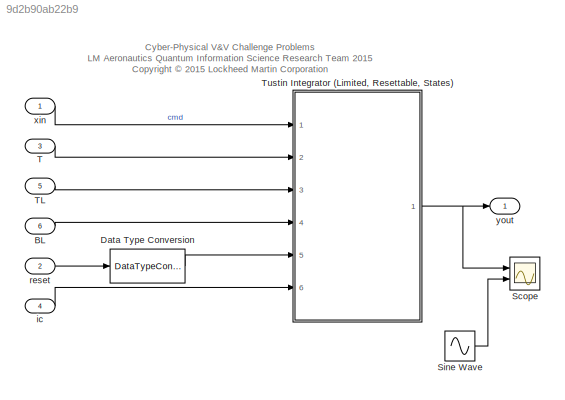
MODEL slx_9d2b90ab22b9
KIND model
CONFIG AbsTol = auto
CONFIG FixedStep = 0.1
CONFIG MaxStep = auto
CONFIG MinStep = auto
CONFIG RelTol = 1e-3
CONFIG SampleTimeConstraint = Unconstrained
CONFIG Solver = FixedStepDiscrete
CONFIG SolverMode = Auto
CONFIG SolverName = FixedStepDiscrete
CONFIG StartTime = 0.0
CONFIG StopTime = 10.0
WORKSPACE source: MAT-file member
WORKSPACE BL = 8.23150537429
BLOCK [Inport] BL
  IconDisplay = Port number
  OutDataTypeStr = double
  Port = 6
BLOCK [DataTypeConversion] Data Type Conversion
  OutDataTypeStr = boolean
  RndMeth = Floor
  SaturateOnIntegerOverflow = off
BLOCK [Scope] Scope
  NumInputPorts = 2
  Ports = [2]
  ScopeSpecificationString = Simulink.scopes.TimeScopeBlockCfg('CurrentConfiguration', extmgr.ConfigurationSet(extmgr.Configuration('Core','General UI',true,'FigureColor',[1 1 1]),extmgr.Configuration('Core','Source UI',true),extmgr.Configuration('Sources','WiredSimulink',true),extmgr.Configuration('Visuals','Time Domain',true,'PlotType','Line','SerializedDisplays',{struct('MinYLimReal','-2.4035','MaxYLimReal','11.63228','YLa...<+1685ch>
BLOCK [Sin] Sine Wave
  Ports = [0, 1]
  SampleTime = 0
BLOCK [Inport] T
  IconDisplay = Port number
  OutDataTypeStr = double
  Port = 3
BLOCK [Inport] TL
  IconDisplay = Port number
  OutDataTypeStr = double
  Port = 5
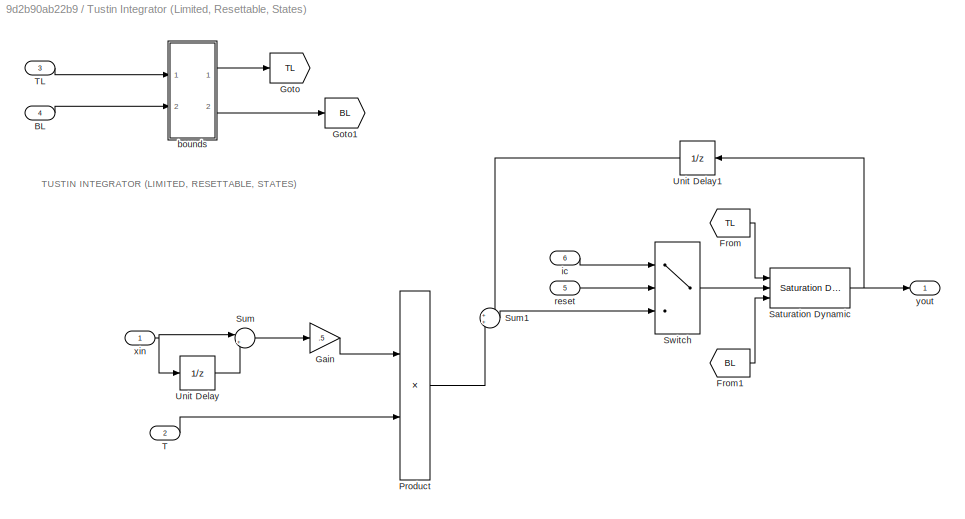
BLOCK [SubSystem] Tustin Integrator (Limited, Resettable, States)
  Ports = [6, 1]
  RequestExecContextInheritance = off
  Variant = off
BLOCK [Inport] Tustin Integrator (Limited, Resettable, States)/BL
  IconDisplay = Port number
  Port = 4
BLOCK [From] Tustin Integrator (Limited, Resettable, States)/From
  GotoTag = TL
BLOCK [From] Tustin Integrator (Limited, Resettable, States)/From1
  GotoTag = BL
BLOCK [Gain] Tustin Integrator (Limited, Resettable, States)/Gain
  Gain = .5
  OutDataTypeStr = Inherit: Inherit via internal rule
  ParamDataTypeStr = Inherit: Inherit via internal rule
  SaturateOnIntegerOverflow = off
BLOCK [Goto] Tustin Integrator (Limited, Resettable, States)/Goto
  GotoTag = TL
BLOCK [Goto] Tustin Integrator (Limited, Resettable, States)/Goto1
  GotoTag = BL
BLOCK [Product] Tustin Integrator (Limited, Resettable, States)/Product
  InputSameDT = off
  OutDataTypeStr = Inherit: Inherit via internal rule
  Ports = [2, 1]
  SaturateOnIntegerOverflow = off
BLOCK [Reference] Tustin Integrator (Limited, Resettable, States)/Saturation Dynamic  REF=simulink/Discontinuities/Saturation
Dynamic
  Ports = [3, 1]
  SourceBlock = simulink/Discontinuities/Saturation\nDynamic
  SourceType = Saturation Dynamic
BLOCK [Sum] Tustin Integrator (Limited, Resettable, States)/Sum
  IconShape = round
  InputSameDT = off
  Inputs = |++
  OutDataTypeStr = Inherit: Inherit via internal rule
  Ports = [2, 1]
  SaturateOnIntegerOverflow = off
BLOCK [Sum] Tustin Integrator (Limited, Resettable, States)/Sum1
  IconShape = round
  InputSameDT = off
  OutDataTypeStr = Inherit: Inherit via internal rule
  Ports = [2, 1]
  SaturateOnIntegerOverflow = off
BLOCK [Switch] Tustin Integrator (Limited, Resettable, States)/Switch
  Criteria = u2 ~= 0
  InputSameDT = off
  SaturateOnIntegerOverflow = off
  Threshold = 0.5
BLOCK [Inport] Tustin Integrator (Limited, Resettable, States)/T
  IconDisplay = Port number
  Port = 2
BLOCK [Inport] Tustin Integrator (Limited, Resettable, States)/TL
  IconDisplay = Port number
  Port = 3
BLOCK [UnitDelay] Tustin Integrator (Limited, Resettable, States)/Unit Delay
  InputProcessing = Elements as channels (sample based)
  SampleTime = -1
BLOCK [UnitDelay] Tustin Integrator (Limited, Resettable, States)/Unit Delay1
  InputProcessing = Elements as channels (sample based)
  SampleTime = -1
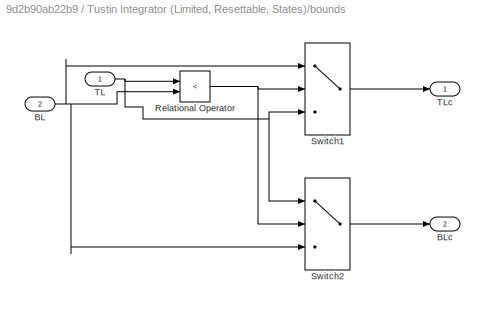
BLOCK [SubSystem] Tustin Integrator (Limited, Resettable, States)/bounds
  Ports = [2, 2]
  RequestExecContextInheritance = off
  Variant = off
BLOCK [Inport] Tustin Integrator (Limited, Resettable, States)/bounds/BL
  IconDisplay = Port number
  Port = 2
BLOCK [Outport] Tustin Integrator (Limited, Resettable, States)/bounds/BLc
  IconDisplay = Port number
  Port = 2
BLOCK [RelationalOperator] Tustin Integrator (Limited, Resettable, States)/bounds/Relational Operator
  InputSameDT = off
  Operator = <
  OutDataTypeStr = boolean
  Ports = [2, 1]
BLOCK [Switch] Tustin Integrator (Limited, Resettable, States)/bounds/Switch1
  Criteria = u2 ~= 0
  InputSameDT = off
  SaturateOnIntegerOverflow = off
  Threshold = 0.5
BLOCK [Switch] Tustin Integrator (Limited, Resettable, States)/bounds/Switch2
  Criteria = u2 ~= 0
  InputSameDT = off
  SaturateOnIntegerOverflow = off
  Threshold = 0.5
BLOCK [Inport] Tustin Integrator (Limited, Resettable, States)/bounds/TL
  IconDisplay = Port number
BLOCK [Outport] Tustin Integrator (Limited, Resettable, States)/bounds/TLc
  IconDisplay = Port number
BLOCK [Inport] Tustin Integrator (Limited, Resettable, States)/ic
  IconDisplay = Port number
  Port = 6
BLOCK [Inport] Tustin Integrator (Limited, Resettable, States)/reset
  IconDisplay = Port number
  Port = 5
BLOCK [Inport] Tustin Integrator (Limited, Resettable, States)/xin
  IconDisplay = Port number
BLOCK [Outport] Tustin Integrator (Limited, Resettable, States)/yout
  IconDisplay = Port number
BLOCK [Inport] ic
  IconDisplay = Port number
  OutDataTypeStr = double
  Port = 4
BLOCK [Inport] reset
  IconDisplay = Port number
  OutDataTypeStr = double
  Port = 2
BLOCK [Inport] xin
  IconDisplay = Port number
  OutDataTypeStr = double
  PortDimensions = 1
BLOCK [Outport] yout
  IconDisplay = Port number
ANNOTATION (root): Cyber-Physical V&V Challenge Problems LM Aeronautics Quantum Information Science Research Team 2015 <copyright redacted>
ANNOTATION Tustin Integrator (Limited, Resettable, States): TUSTIN INTEGRATOR (LIMITED, RESETTABLE, STATES)
LINE BL:1 -> Tustin Integrator (Limited, Resettable, States):4
LINE Data Type Conversion:1 -> Tustin Integrator (Limited, Resettable, States):5
LINE Sine Wave:1 -> Scope:2
LINE T:1 -> Tustin Integrator (Limited, Resettable, States):2
LINE TL:1 -> Tustin Integrator (Limited, Resettable, States):3
LINE Tustin Integrator (Limited, Resettable, States)/BL:1 -> Tustin Integrator (Limited, Resettable, States)/bounds:2
LINE Tustin Integrator (Limited, Resettable, States)/From1:1 -> Tustin Integrator (Limited, Resettable, States)/Saturation Dynamic:3
LINE Tustin Integrator (Limited, Resettable, States)/From:1 -> Tustin Integrator (Limited, Resettable, States)/Saturation Dynamic:1
LINE Tustin Integrator (Limited, Resettable, States)/Gain:1 -> Tustin Integrator (Limited, Resettable, States)/Product:1
LINE Tustin Integrator (Limited, Resettable, States)/Product:1 -> Tustin Integrator (Limited, Resettable, States)/Sum1:2
NET Tustin Integrator (Limited, Resettable, States)/Saturation Dynamic:1 -> Tustin Integrator (Limited, Resettable, States)/Unit Delay1:1, Tustin Integrator (Limited, Resettable, States)/yout:1
LINE Tustin Integrator (Limited, Resettable, States)/Sum1:1 -> Tustin Integrator (Limited, Resettable, States)/Switch:3
LINE Tustin Integrator (Limited, Resettable, States)/Sum:1 -> Tustin Integrator (Limited, Resettable, States)/Gain:1
LINE Tustin Integrator (Limited, Resettable, States)/Switch:1 -> Tustin Integrator (Limited, Resettable, States)/Saturation Dynamic:2
LINE Tustin Integrator (Limited, Resettable, States)/T:1 -> Tustin Integrator (Limited, Resettable, States)/Product:2
LINE Tustin Integrator (Limited, Resettable, States)/TL:1 -> Tustin Integrator (Limited, Resettable, States)/bounds:1
LINE Tustin Integrator (Limited, Resettable, States)/Unit Delay1:1 -> Tustin Integrator (Limited, Resettable, States)/Sum1:1
LINE Tustin Integrator (Limited, Resettable, States)/Unit Delay:1 -> Tustin Integrator (Limited, Resettable, States)/Sum:2
NET Tustin Integrator (Limited, Resettable, States)/bounds/BL:1 -> Tustin Integrator (Limited, Resettable, States)/bounds/Relational Operator:2, Tustin Integrator (Limited, Resettable, States)/bounds/Switch1:1, Tustin Integrator (Limited, Resettable, States)/bounds/Switch2:3
NET Tustin Integrator (Limited, Resettable, States)/bounds/Relational Operator:1 -> Tustin Integrator (Limited, Resettable, States)/bounds/Switch1:2, Tustin Integrator (Limited, Resettable, States)/bounds/Switch2:2
LINE Tustin Integrator (Limited, Resettable, States)/bounds/Switch1:1 -> Tustin Integrator (Limited, Resettable, States)/bounds/TLc:1
LINE Tustin Integrator (Limited, Resettable, States)/bounds/Switch2:1 -> Tustin Integrator (Limited, Resettable, States)/bounds/BLc:1
NET Tustin Integrator (Limited, Resettable, States)/bounds/TL:1 -> Tustin Integrator (Limited, Resettable, States)/bounds/Relational Operator:1, Tustin Integrator (Limited, Resettable, States)/bounds/Switch1:3, Tustin Integrator (Limited, Resettable, States)/bounds/Switch2:1
LINE Tustin Integrator (Limited, Resettable, States)/bounds:1 -> Tustin Integrator (Limited, Resettable, States)/Goto:1
LINE Tustin Integrator (Limited, Resettable, States)/bounds:2 -> Tustin Integrator (Limited, Resettable, States)/Goto1:1
LINE Tustin Integrator (Limited, Resettable, States)/ic:1 -> Tustin Integrator (Limited, Resettable, States)/Switch:1
LINE Tustin Integrator (Limited, Resettable, States)/reset:1 -> Tustin Integrator (Limited, Resettable, States)/Switch:2
NET Tustin Integrator (Limited, Resettable, States)/xin:1 -> Tustin Integrator (Limited, Resettable, States)/Sum:1, Tustin Integrator (Limited, Resettable, States)/Unit Delay:1
NET Tustin Integrator (Limited, Resettable, States):1 -> Scope:1, yout:1
LINE ic:1 -> Tustin Integrator (Limited, Resettable, States):6
LINE reset:1 -> Data Type Conversion:1
LINE xin:1 -> Tustin Integrator (Limited, Resettable, States):1
note: NET lines group one-source signal fan-out (src -> all destinations, sorted); 1:1 wires keep LINE
